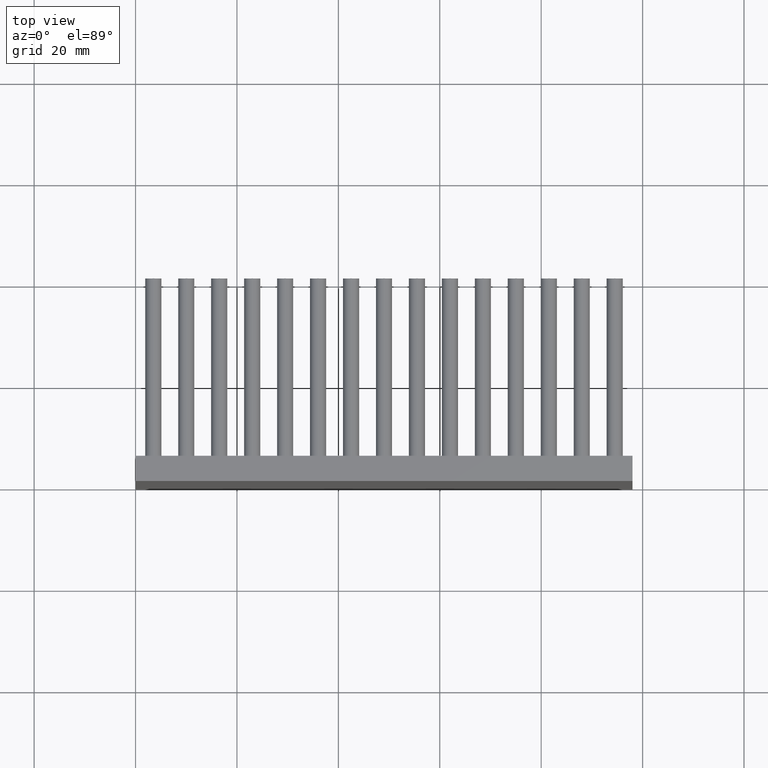
[diagram: clean part render]
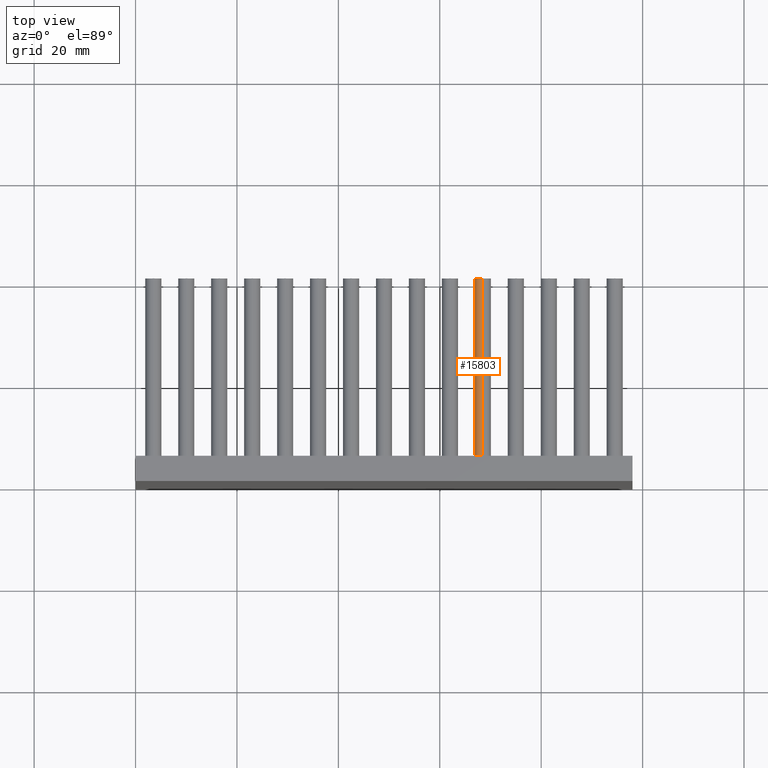
[diagram: same view with one face highlighted and labeled with its STEP entity id]
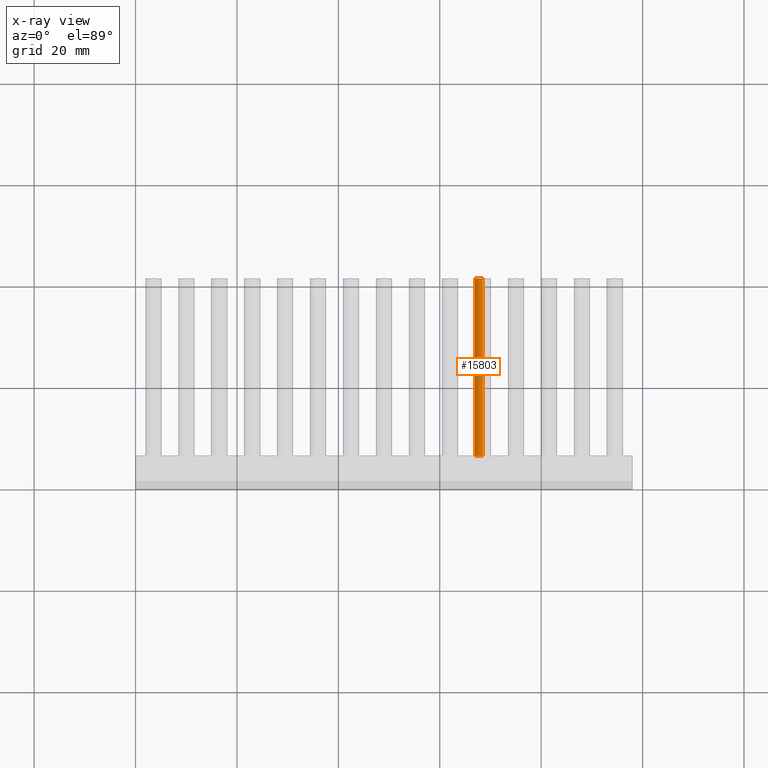
[diagram: x-ray of the same camera — body ghosted, the highlighted face saturated]
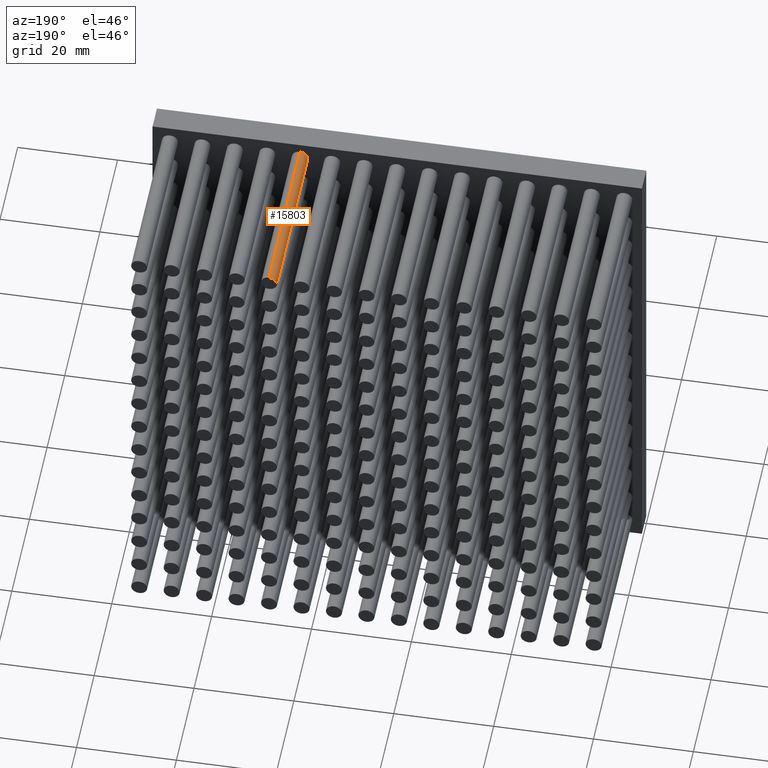
[diagram: same view with one face highlighted and labeled with its STEP entity id]
A machine part, top view. The second image highlights one B-rep face of the part: STEP entity #15803.
The next image is the same camera in x-ray: the body ghosted, the highlighted face saturated — about 0% of this face is hidden behind the body in this view.
A second angle (auxiliary view) of the same face is appended — the face is thin or edge-on in the first view.
In plain terms, the highlighted cylindrical surface (edge-blend (fillet) strip) has radius 1.6 mm, axis along (-0, -1, -0).
Its self-contained STEP definition (entity closure, byte-faithful):
#190 = CARTESIAN_POINT ( 'NONE',  ( 68.50000000000001421, 5.000000000000000000, 96.09999999999999432 ) ) ;
#343 = DIRECTION ( 'NONE',  ( 0.0000000000000000000, 0.0000000000000000000, -1.000000000000000000 ) ) ;
#652 = CARTESIAN_POINT ( 'NONE',  ( 68.50000000000001421, 40.00000000000000000, 92.89999999999997726 ) ) ;
#911 = EDGE_CURVE ( 'NONE', #8671, #13988, #15944, .T. ) ;
#1523 = EDGE_LOOP ( 'NONE', ( #3432, #11498, #10758, #14927 ) ) ;
#1923 = AXIS2_PLACEMENT_3D ( 'NONE', #11499, #5875, #8547 ) ;
#3183 = DIRECTION ( 'NONE',  ( -0.0000000000000000000, -1.000000000000000000, -0.0000000000000000000 ) ) ;
#3432 = ORIENTED_EDGE ( 'NONE', *, *, #4516, .F. ) ;
#4483 = CARTESIAN_POINT ( 'NONE',  ( 68.50000000000001421, 40.00000000000000000, 94.49999999999998579 ) ) ;
#4516 = EDGE_CURVE ( 'NONE', #6007, #14548, #9561, .T. ) ;
#5716 = AXIS2_PLACEMENT_3D ( 'NONE', #9952, #14290, #6975 ) ;
#5774 = CARTESIAN_POINT ( 'NONE',  ( 68.50000000000001421, 40.00000000000000000, 92.89999999999997726 ) ) ;
#5875 = DIRECTION ( 'NONE',  ( 0.0000000000000000000, 1.000000000000000000, 0.0000000000000000000 ) ) ;
#6007 = VERTEX_POINT ( 'NONE', #12084 ) ;
#6166 = DIRECTION ( 'NONE',  ( -0.0000000000000000000, -1.000000000000000000, -0.0000000000000000000 ) ) ;
#6975 = DIRECTION ( 'NONE',  ( 0.0000000000000000000, 0.0000000000000000000, 1.000000000000000000 ) ) ;
#7182 = VECTOR ( 'NONE', #6166, 1000.000000000000000 ) ;
#7493 = CIRCLE ( 'NONE', #1923, 1.600000000000004086 ) ;
#8223 = EDGE_CURVE ( 'NONE', #8671, #6007, #7493, .T. ) ;
#8271 = VECTOR ( 'NONE', #9645, 1000.000000000000000 ) ;
#8547 = DIRECTION ( 'NONE',  ( 0.0000000000000000000, 0.0000000000000000000, 1.000000000000000000 ) ) ;
#8671 = VERTEX_POINT ( 'NONE', #5774 ) ;
#9561 = LINE ( 'NONE', #13983, #8271 ) ;
#9645 = DIRECTION ( 'NONE',  ( -0.0000000000000000000, -1.000000000000000000, -0.0000000000000000000 ) ) ;
#9952 = CARTESIAN_POINT ( 'NONE',  ( 68.50000000000001421, 5.000000000000000000, 94.49999999999998579 ) ) ;
#10377 = AXIS2_PLACEMENT_3D ( 'NONE', #4483, #3183, #343 ) ;
#10758 = ORIENTED_EDGE ( 'NONE', *, *, #911, .T. ) ;
#11498 = ORIENTED_EDGE ( 'NONE', *, *, #8223, .F. ) ;
#11499 = CARTESIAN_POINT ( 'NONE',  ( 68.50000000000001421, 40.00000000000000000, 94.49999999999998579 ) ) ;
#12084 = CARTESIAN_POINT ( 'NONE',  ( 68.50000000000001421, 40.00000000000000000, 96.09999999999999432 ) ) ;
#12950 = CYLINDRICAL_SURFACE ( 'NONE', #10377, 1.600000000000004086 ) ;
#13983 = CARTESIAN_POINT ( 'NONE',  ( 68.50000000000001421, 40.00000000000000000, 96.09999999999999432 ) ) ;
#13988 = VERTEX_POINT ( 'NONE', #15225 ) ;
#14290 = DIRECTION ( 'NONE',  ( 0.0000000000000000000, 1.000000000000000000, 0.0000000000000000000 ) ) ;
#14548 = VERTEX_POINT ( 'NONE', #190 ) ;
#14927 = ORIENTED_EDGE ( 'NONE', *, *, #17076, .T. ) ;
#15144 = CIRCLE ( 'NONE', #5716, 1.600000000000004086 ) ;
#15225 = CARTESIAN_POINT ( 'NONE',  ( 68.50000000000001421, 5.000000000000000000, 92.89999999999997726 ) ) ;
#15803 = ADVANCED_FACE ( 'NONE', ( #17280 ), #12950, .T. ) ;
#15944 = LINE ( 'NONE', #652, #7182 ) ;
#17076 = EDGE_CURVE ( 'NONE', #13988, #14548, #15144, .T. ) ;
#17280 = FACE_OUTER_BOUND ( 'NONE', #1523, .T. ) ;